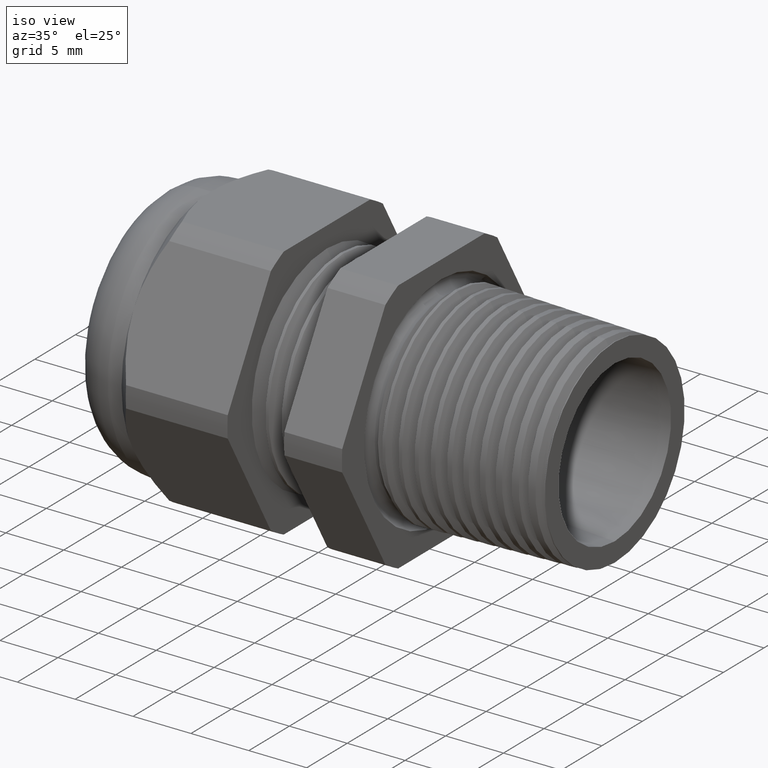
[diagram: clean part render]
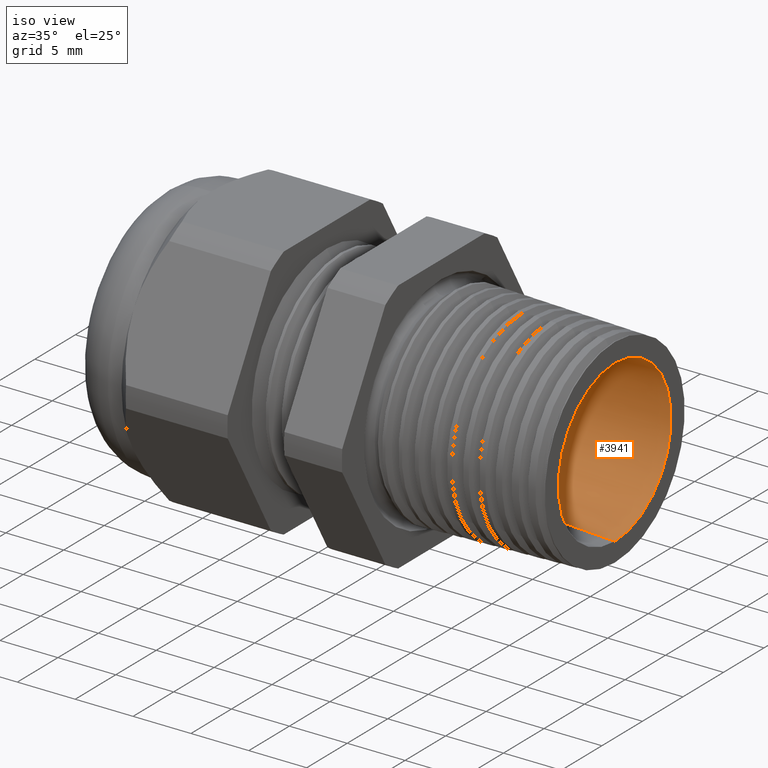
[diagram: same view with one face highlighted and labeled with its STEP entity id]
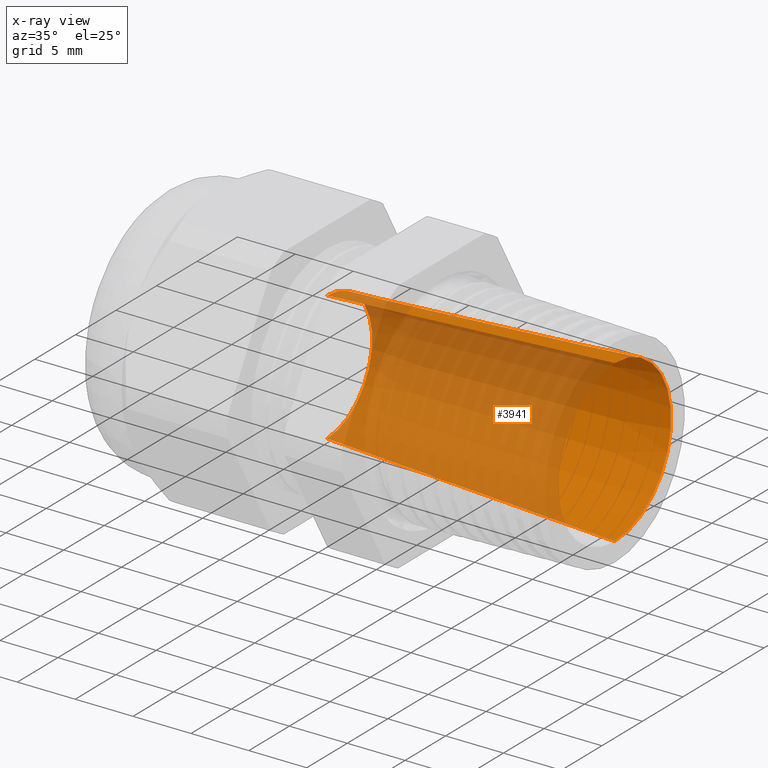
[diagram: x-ray of the same camera — body ghosted, the highlighted face saturated]
A machine part, iso view. The second image highlights one B-rep face of the part: STEP entity #3941.
The next image is the same camera in x-ray: the body ghosted, the highlighted face saturated — about 67% of this face is hidden behind the body in this view.
In plain terms, the highlighted conical surface has half-angle 3.141 deg.
Its self-contained STEP definition (entity closure, byte-faithful):
#857 = ORIENTED_EDGE ( 'NONE', *, *, #3825, .F. ) ;
#1181 = EDGE_LOOP ( 'NONE', ( #857, #3960, #3962, #3961 ) ) ;
#3294 = CARTESIAN_POINT ( 'NONE',  ( -0.6994488188976378800, 2.694222958124177300E-017, 0.2200000000000000000 ) ) ;
#3295 = CARTESIAN_POINT ( 'NONE',  ( -0.6994488188976378800, 0.0000000000000000000, -0.2200000000000000000 ) ) ;
#3296 = DIRECTION ( 'NONE',  ( 0.9984976059086622100, 6.710495683629710800E-018, 0.05479535559397059200 ) ) ;
#3297 = VECTOR ( 'NONE', #3296, 39.37007874015748100 ) ;
#3298 = CARTESIAN_POINT ( 'NONE',  ( -0.6994488188976378800, 2.694222958124177300E-017, 0.2200000000000000000 ) ) ;
#3299 = LINE ( 'NONE', #3298, #3297 ) ;
#3305 = CARTESIAN_POINT ( 'NONE',  ( 0.2800000000000000300, 3.352470612665879100E-017, 0.2737499999999999900 ) ) ;
#3310 = CARTESIAN_POINT ( 'NONE',  ( 0.2800000000000000300, 0.0000000000000000000, -0.2737499999999999900 ) ) ;
#3426 = DIRECTION ( 'NONE',  ( 0.9984976059086622100, 0.0000000000000000000, -0.05479535559397059200 ) ) ;
#3427 = VECTOR ( 'NONE', #3426, 39.37007874015748100 ) ;
#3428 = CARTESIAN_POINT ( 'NONE',  ( -0.6994488188976378800, 0.0000000000000000000, -0.2200000000000000000 ) ) ;
#3429 = LINE ( 'NONE', #3428, #3427 ) ;
#3508 = DIRECTION ( 'NONE',  ( 0.0000000000000000000, 0.0000000000000000000, -1.000000000000000000 ) ) ;
#3509 = DIRECTION ( 'NONE',  ( 1.000000000000000000, 0.0000000000000000000, 0.0000000000000000000 ) ) ;
#3510 = AXIS2_PLACEMENT_3D ( 'NONE', #3515, #3509, #3508 ) ;
#3511 = CIRCLE ( 'NONE', #3510, 0.2200000000000000000 ) ;
#3512 = DIRECTION ( 'NONE',  ( 0.0000000000000000000, 0.0000000000000000000, -1.000000000000000000 ) ) ;
#3513 = DIRECTION ( 'NONE',  ( 1.000000000000000000, 0.0000000000000000000, 0.0000000000000000000 ) ) ;
#3514 = AXIS2_PLACEMENT_3D ( 'NONE', #3523, #3513, #3512 ) ;
#3515 = CARTESIAN_POINT ( 'NONE',  ( -0.6994488188976378800, 0.0000000000000000000, 0.0000000000000000000 ) ) ;
#3516 = CONICAL_SURFACE ( 'NONE', #3514, 0.2200000000000000000, 0.05482281350187767600 ) ;
#3517 = FACE_OUTER_BOUND ( 'NONE', #1181, .T. ) ;
#3523 = CARTESIAN_POINT ( 'NONE',  ( -0.6994488188976378800, 0.0000000000000000000, 0.0000000000000000000 ) ) ;
#3556 = DIRECTION ( 'NONE',  ( 0.0000000000000000000, 0.0000000000000000000, -1.000000000000000000 ) ) ;
#3557 = DIRECTION ( 'NONE',  ( 1.000000000000000000, 0.0000000000000000000, 0.0000000000000000000 ) ) ;
#3558 = AXIS2_PLACEMENT_3D ( 'NONE', #3564, #3557, #3556 ) ;
#3559 = CIRCLE ( 'NONE', #3558, 0.2737499999999999900 ) ;
#3564 = CARTESIAN_POINT ( 'NONE',  ( 0.2800000000000000300, 0.0000000000000000000, 0.0000000000000000000 ) ) ;
#3820 = VERTEX_POINT ( 'NONE', #3310 ) ;
#3822 = VERTEX_POINT ( 'NONE', #3305 ) ;
#3825 = EDGE_CURVE ( 'NONE', #3827, #3822, #3299, .T. ) ;
#3826 = VERTEX_POINT ( 'NONE', #3295 ) ;
#3827 = VERTEX_POINT ( 'NONE', #3294 ) ;
#3883 = EDGE_CURVE ( 'NONE', #3826, #3820, #3429, .T. ) ;
#3941 = ADVANCED_FACE ( 'NONE', ( #3517 ), #3516, .F. ) ;
#3942 = EDGE_CURVE ( 'NONE', #3826, #3827, #3511, .T. ) ;
#3957 = EDGE_CURVE ( 'NONE', #3820, #3822, #3559, .T. ) ;
#3960 = ORIENTED_EDGE ( 'NONE', *, *, #3942, .F. ) ;
#3961 = ORIENTED_EDGE ( 'NONE', *, *, #3957, .T. ) ;
#3962 = ORIENTED_EDGE ( 'NONE', *, *, #3883, .T. ) ;